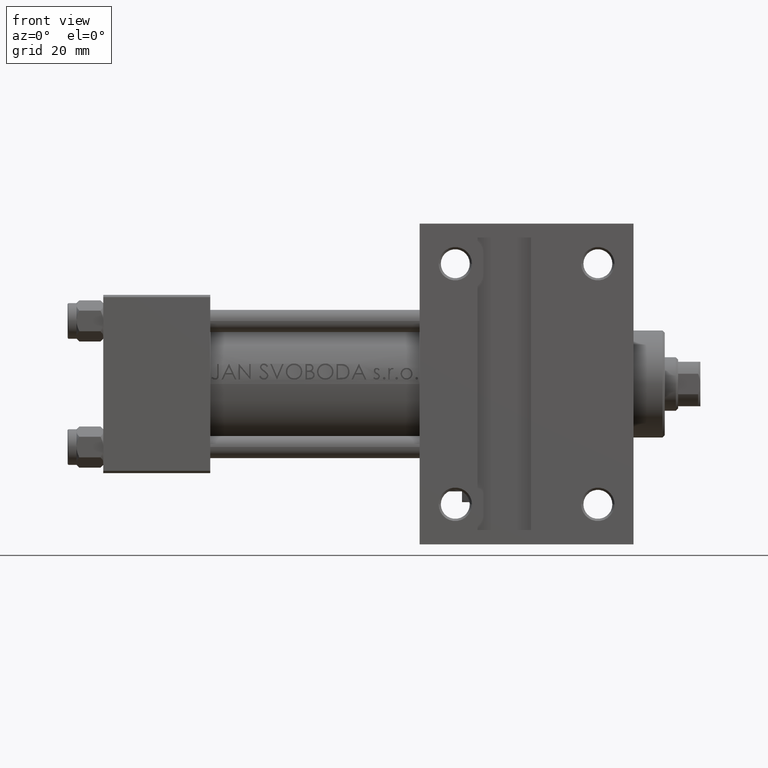
[diagram: clean part render]
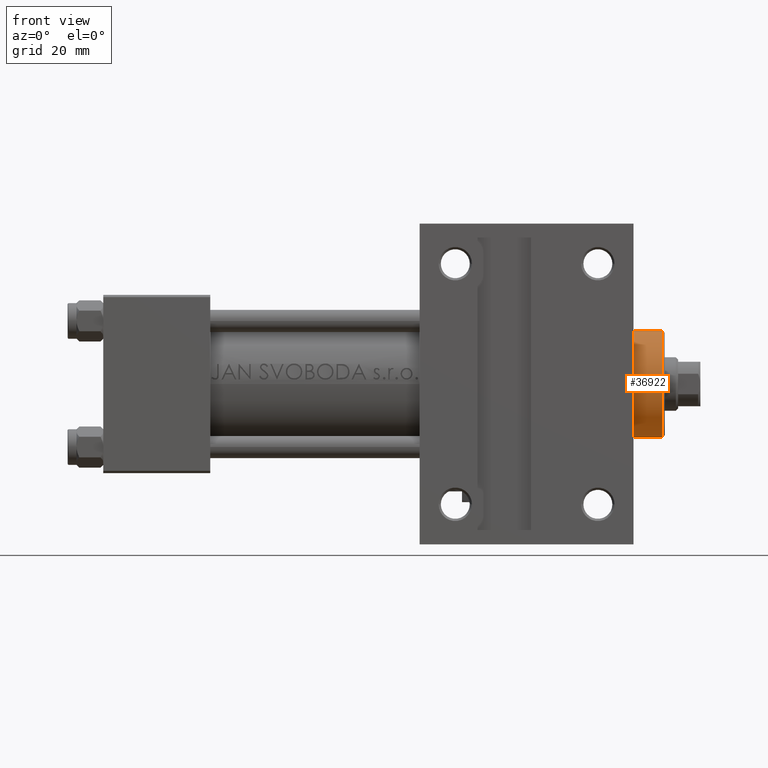
[diagram: same view with one face highlighted and labeled with its STEP entity id]
A machine part, front view. The second image highlights one B-rep face of the part: STEP entity #36922.
In plain terms, the highlighted cylindrical surface (partial cylindrical patch) has radius 12 mm, axis along (-1, 0, 0).
Its self-contained STEP definition (entity closure, byte-faithful):
#526 = FACE_OUTER_BOUND ( 'NONE', #45772, .T. ) ;
#766 = DIRECTION ( 'NONE',  ( -0.000000000000000000, -0.000000000000000000, -1.000000000000000000 ) ) ;
#1482 = LINE ( 'NONE', #43138, #30254 ) ;
#1770 = CIRCLE ( 'NONE', #26473, 12.00000000000000178 ) ;
#3384 = CARTESIAN_POINT ( 'NONE',  ( 12.00000000000000178, 1.469576158976824144E-15, 35.70000000000000284 ) ) ;
#4762 = DIRECTION ( 'NONE',  ( -1.000000000000000000, 0.000000000000000000, 0.000000000000000000 ) ) ;
#5499 = DIRECTION ( 'NONE',  ( 0.000000000000000000, 0.000000000000000000, -1.000000000000000000 ) ) ;
#6108 = EDGE_CURVE ( 'NONE', #37966, #35768, #40805, .T. ) ;
#6703 = ORIENTED_EDGE ( 'NONE', *, *, #6108, .T. ) ;
#8969 = DIRECTION ( 'NONE',  ( -0.000000000000000000, -0.000000000000000000, -1.000000000000000000 ) ) ;
#9049 = CIRCLE ( 'NONE', #10619, 12.00000000000000178 ) ;
#10419 = EDGE_CURVE ( 'NONE', #31279, #41887, #1482, .T. ) ;
#10606 = ORIENTED_EDGE ( 'NONE', *, *, #31168, .T. ) ;
#10619 = AXIS2_PLACEMENT_3D ( 'NONE', #41730, #33749, #27903 ) ;
#13831 = CARTESIAN_POINT ( 'NONE',  ( -12.00000000000000178, 0.000000000000000000, 28.69999999999999929 ) ) ;
#15092 = DIRECTION ( 'NONE',  ( -0.000000000000000000, -0.000000000000000000, -1.000000000000000000 ) ) ;
#15733 = CARTESIAN_POINT ( 'NONE',  ( 0.000000000000000000, 0.000000000000000000, 35.70000000000000284 ) ) ;
#20514 = ORIENTED_EDGE ( 'NONE', *, *, #10419, .F. ) ;
#20524 = VECTOR ( 'NONE', #15092, 1000.000000000000000 ) ;
#21450 = DIRECTION ( 'NONE',  ( 1.000000000000000000, 0.000000000000000000, 0.000000000000000000 ) ) ;
#22226 = ORIENTED_EDGE ( 'NONE', *, *, #40791, .T. ) ;
#26267 = CARTESIAN_POINT ( 'NONE',  ( 12.00000000000000178, 1.469576158976824144E-15, 35.19999999999999574 ) ) ;
#26473 = AXIS2_PLACEMENT_3D ( 'NONE', #47157, #5499, #21450 ) ;
#27903 = DIRECTION ( 'NONE',  ( 1.000000000000000000, 0.000000000000000000, 0.000000000000000000 ) ) ;
#30254 = VECTOR ( 'NONE', #8969, 1000.000000000000000 ) ;
#30688 = CARTESIAN_POINT ( 'NONE',  ( 12.00000000000000178, 1.469576158976824144E-15, 28.69999999999999929 ) ) ;
#31168 = EDGE_CURVE ( 'NONE', #35768, #41887, #9049, .T. ) ;
#31279 = VERTEX_POINT ( 'NONE', #32391 ) ;
#32391 = CARTESIAN_POINT ( 'NONE',  ( -12.00000000000000178, 0.000000000000000000, 35.19999999999999574 ) ) ;
#33749 = DIRECTION ( 'NONE',  ( 0.000000000000000000, 0.000000000000000000, 1.000000000000000000 ) ) ;
#34945 = CYLINDRICAL_SURFACE ( 'NONE', #44341, 12.00000000000000178 ) ;
#35768 = VERTEX_POINT ( 'NONE', #30688 ) ;
#36922 = ADVANCED_FACE ( 'NONE', ( #526 ), #34945, .T. ) ;
#37966 = VERTEX_POINT ( 'NONE', #26267 ) ;
#40791 = EDGE_CURVE ( 'NONE', #31279, #37966, #1770, .T. ) ;
#40805 = LINE ( 'NONE', #3384, #20524 ) ;
#41730 = CARTESIAN_POINT ( 'NONE',  ( 0.000000000000000000, 0.000000000000000000, 28.69999999999999929 ) ) ;
#41887 = VERTEX_POINT ( 'NONE', #13831 ) ;
#43138 = CARTESIAN_POINT ( 'NONE',  ( -12.00000000000000178, 0.000000000000000000, 35.70000000000000284 ) ) ;
#44341 = AXIS2_PLACEMENT_3D ( 'NONE', #15733, #766, #4762 ) ;
#45772 = EDGE_LOOP ( 'NONE', ( #22226, #6703, #10606, #20514 ) ) ;
#47157 = CARTESIAN_POINT ( 'NONE',  ( 0.000000000000000000, 0.000000000000000000, 35.19999999999999574 ) ) ;